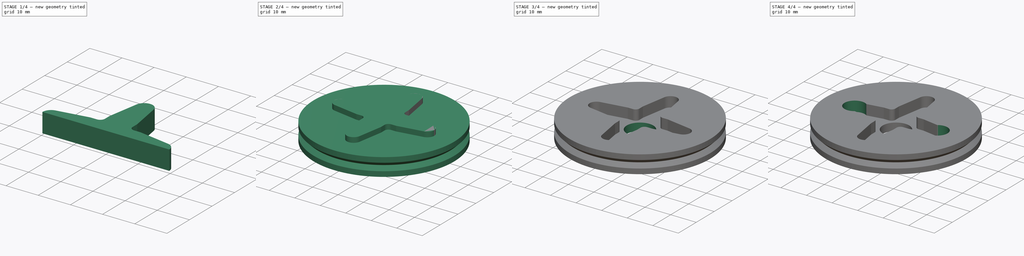
[diagram: build sequence overview — one tinted view per stage of 4, left to right]
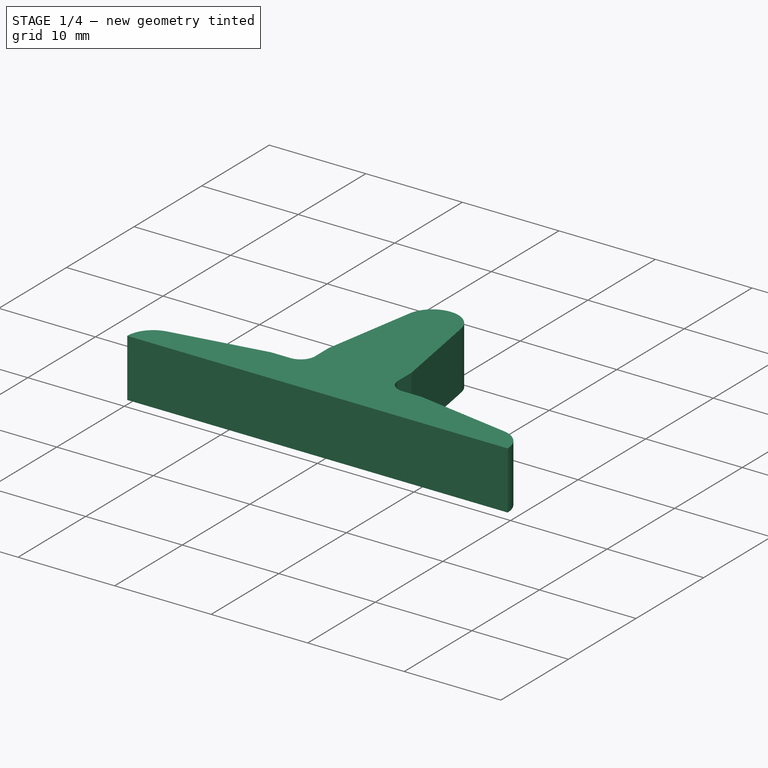
[diagram: stage 1 of 4 — iso view after this stage's code; geometry added in this stage tinted green]
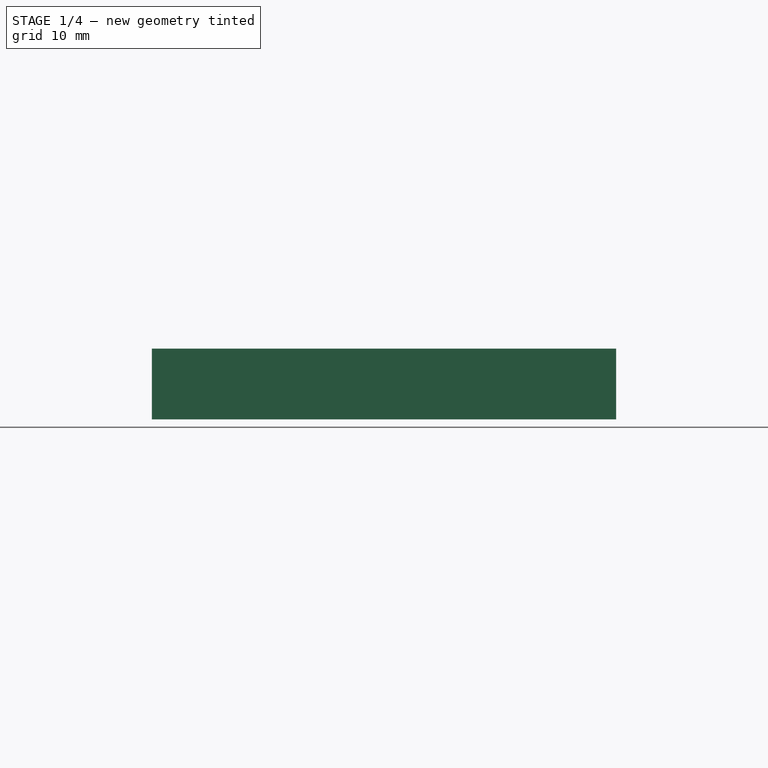
[diagram: stage 1 of 4 — front view after this stage's code; geometry added in this stage tinted green]
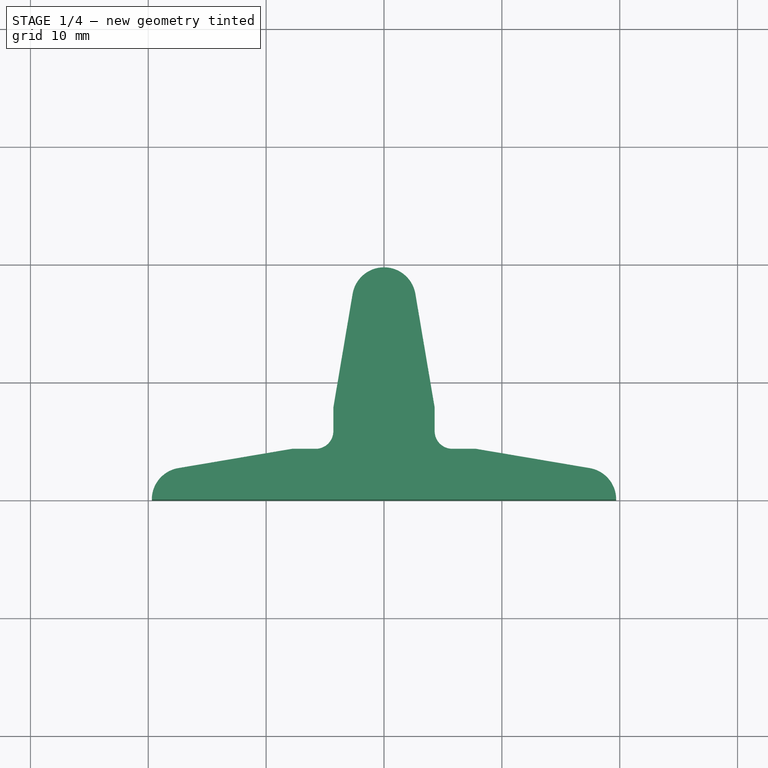
[diagram: stage 1 of 4 — top view after this stage's code; geometry added in this stage tinted green]
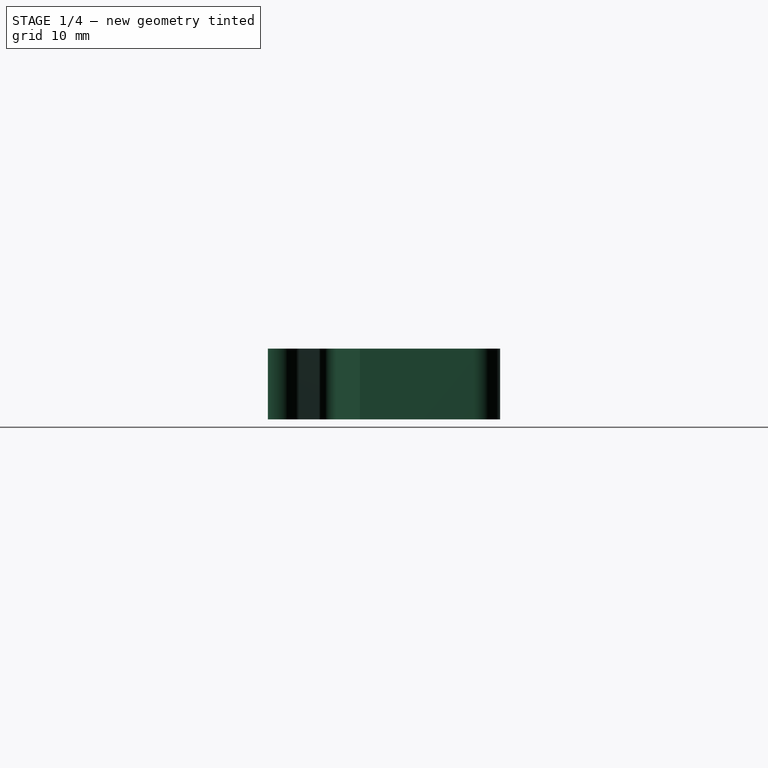
[diagram: stage 1 of 4 — right view after this stage's code; geometry added in this stage tinted green]
FCSTD DOCUMENT  (FreeCAD 0.19R24291 (Git))
Label: rueda
License: CC-BY 3.0
LicenseURL: http://creativecommons.org/licenses/by/3.0/
objects: Sketcher::SketchObject×5, PartDesign::Pocket×3, Part::Mirroring×2, Part::MultiFuse×2, PartDesign::PolarPattern×2, PartDesign::Revolution×1, PartDesign::Pad×1, Part::Cut×1, Part::Feature×1
note: 23 computed .brp shape members not serialized (recipe doc carries the construction recipe); baked Part::Feature solids carry a one-line shape summary decoded from their .brp

FEATURE [Sketcher::SketchObject] Sketch001  label="horn-top-left-quarter-sketch"
  FullyConstrained = false
  MapMode = 5
  sketch-geometry (12):
    g0: LineSegment StartX=0 StartY=0 StartZ=0 EndX=0 EndY=19.7 EndZ=0
    g1: LineSegment StartX=-4.73762 StartY=4.73762 StartZ=0 EndX=0 EndY=0 EndZ=0
    g2: ArcOfCircle CenterX=-5.79828 CenterY=5.79828 CenterZ=0 NormalX=0 NormalY=0 NormalZ=1 AngleXU=0 Radius=1.5 StartAngle=4.7124 EndAngle=6.28317
    g3: ArcOfCircle CenterX=-17 CenterY=0 CenterZ=0 NormalX=0 NormalY=0 NormalZ=1 AngleXU=0 Radius=2.7 StartAngle=1.73871 EndAngle=3.14159
    g4: ArcOfCircle CenterX=0 CenterY=17 CenterZ=0 NormalX=0 NormalY=0 NormalZ=1 AngleXU=0 Radius=2.7 StartAngle=1.5708 EndAngle=2.97368
    g5: LineSegment StartX=-4.29828 StartY=5.79826 StartZ=0 EndX=-4.29828 EndY=7.79826 EndZ=0
    g6: LineSegment StartX=-5.79826 StartY=4.29828 StartZ=0 EndX=-7.79826 EndY=4.29828 EndZ=0
    g7: LineSegment StartX=-4.29828 StartY=7.79826 StartZ=0 EndX=-2.66203 EndY=17.4512 EndZ=0
    g8: LineSegment StartX=-17.4512 StartY=2.66203 StartZ=0 EndX=-7.79826 EndY=4.29828 EndZ=0
    g9: LineSegment StartX=-7.79826 StartY=4.29828 StartZ=0 EndX=-7.79826 EndY=0 EndZ=0
    g10: LineSegment StartX=-4.29828 StartY=7.79826 StartZ=0 EndX=0 EndY=7.79826 EndZ=0
    g11: LineSegment StartX=-19.7 StartY=0 StartZ=0 EndX=0 EndY=0 EndZ=0
  constraints (39):
    c: PointOnObject(g0,g-2)
    c: Coincident(g1,g-1)
    c: Angle(g-1,g1) = 2.35619
    c: PointOnObject(g2,g1)
    c: PointOnObject(g1,g2)
    c: Coincident(g4,g0)
    c: PointOnObject(g4,g0)
    c: Equal(g3,g4)
    c: Radius(g3) = 2.7
    c: Coincident(g5,g2)
    c: Vertical(g5)
    c: Coincident(g6,g2)
    c: Horizontal(g6)
    c: Equal(g6,g5)
    c: Tangent(g7,g4)
    c: Coincident(g7,g4)
    c: Coincident(g7,g5)
    c: Coincident(g8,g3)
    c: Coincident(g8,g6)
    c: Tangent(g8,g3)
    c: Tangent(g2,g6)
    c: DistanceX(g6) = -2
    c: Radius(g2) = 1.5
    c: Vertical(g9)
    c: Coincident(g9,g6)
    c: Horizontal(g10)
    c: Coincident(g10,g5)
    c: PointOnObject(g10,g0)
    c: Equal(g9,g10)
    c: Distance(g1) = 6.7
    c: PointOnObject(g3,g-1)
    c: PointOnObject(g3,g-1)
    c: Horizontal(g11)
    c: Coincident(g11,g-1)
    c: Coincident(g11,g3)
    c: Equal(g11,g0)
    c: PointOnObject(g9,g11)
    c: Coincident(g0,g-1)
    c: DistanceX(g11) = 19.7
FEATURE [PartDesign::Pad] Pad  label="horn-top-left-quarter"
  AllowMultiFace = false
  Direction = (1,1,1)
  Length = 6
  Length2 = 100
  Profile = -> Sketch001
  Type = 0
FEATURE [Part::Mirroring] Part__Mirroring  label="horn-top-left-quarter (Mirror #1)"
  Base = (0,0,0)
  Normal = (1,0,0)
  Source = -> Pad
FEATURE [Part::MultiFuse] Fusion
  Shapes = -> [Part__Mirroring,Pad]
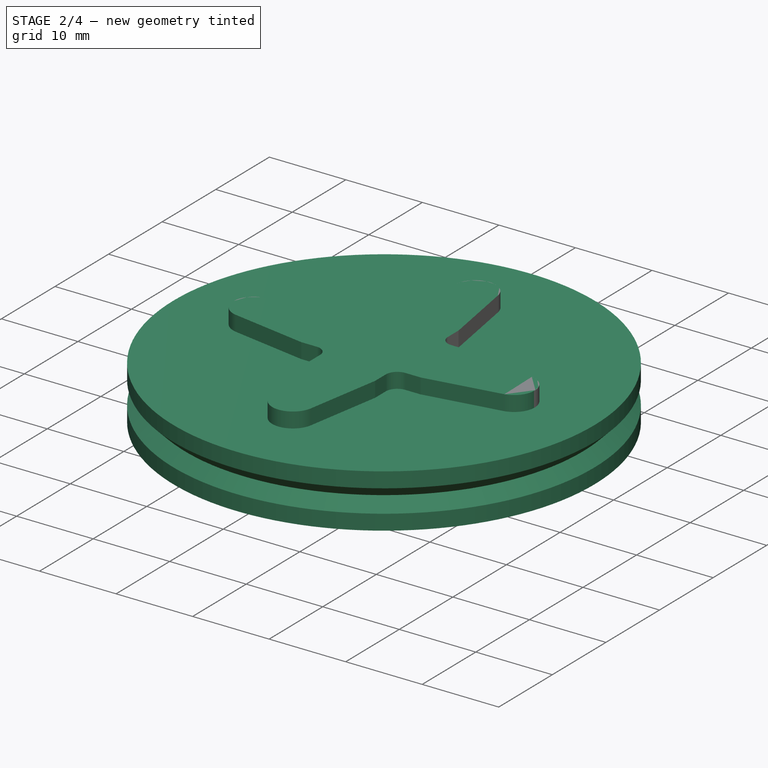
[diagram: stage 2 of 4 — iso view after this stage's code; geometry added in this stage tinted green]
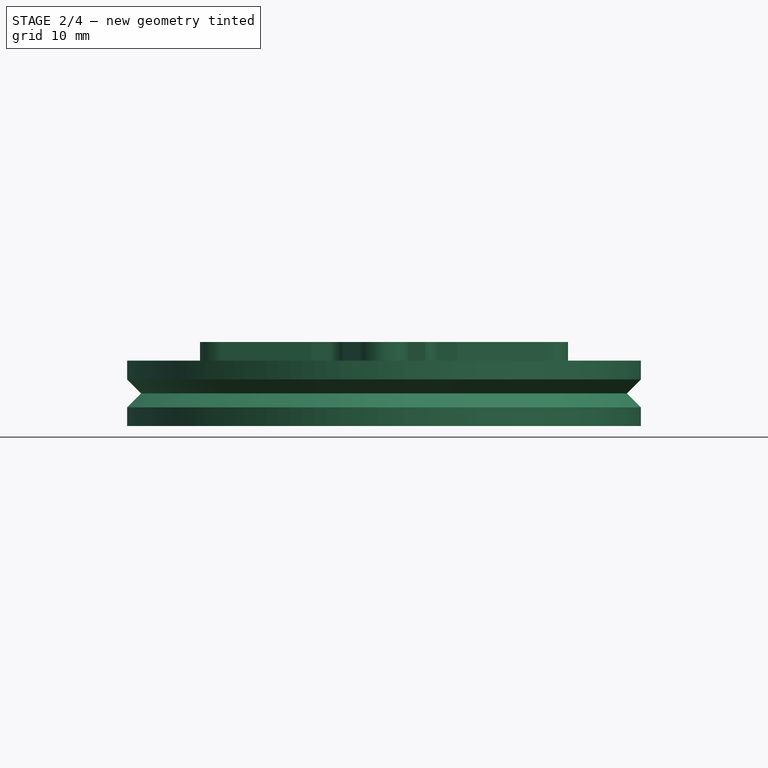
[diagram: stage 2 of 4 — front view after this stage's code; geometry added in this stage tinted green]
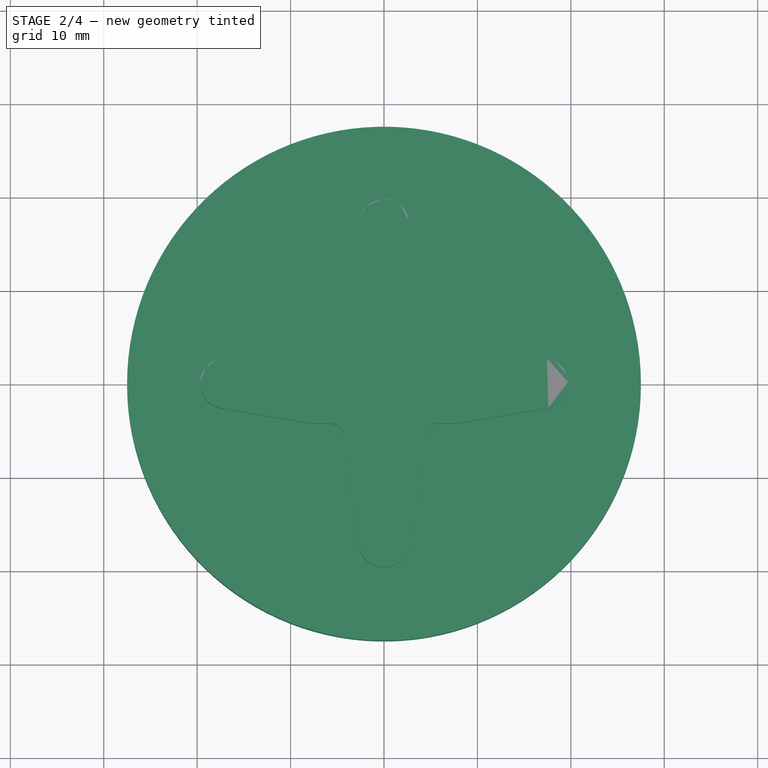
[diagram: stage 2 of 4 — top view after this stage's code; geometry added in this stage tinted green]
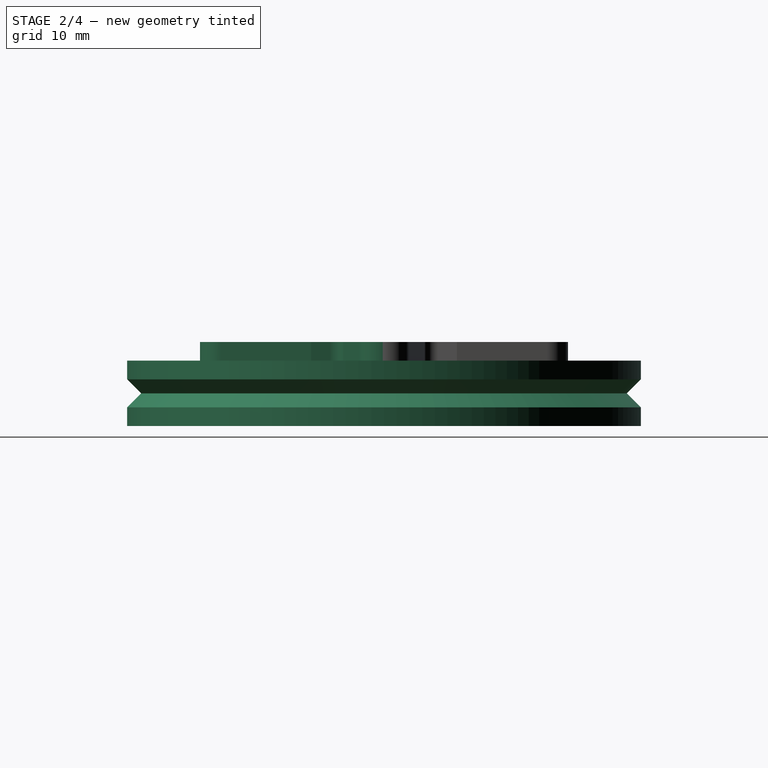
[diagram: stage 2 of 4 — right view after this stage's code; geometry added in this stage tinted green]
FEATURE [Sketcher::SketchObject] Sketch  label="wheel-generic-sketch"
  FullyConstrained = false
  MapMode = 5
  Placement = pos=(0,0,0) rot=(1,0,0;1.5708rad)
  sketch-geometry (7):
    g0: LineSegment StartX=0 StartY=-3.5 StartZ=0 EndX=0 EndY=3.5 EndZ=0
    g1: LineSegment StartX=0 StartY=3.5 StartZ=0 EndX=27.5 EndY=3.5 EndZ=0
    g2: LineSegment StartX=27.5 StartY=3.5 StartZ=0 EndX=27.5 EndY=1.5 EndZ=0
    g3: LineSegment StartX=27.5 StartY=1.5 StartZ=0 EndX=26 EndY=0 EndZ=0
    g4: LineSegment StartX=26 StartY=0 StartZ=0 EndX=27.5 EndY=-1.5 EndZ=0
    g5: LineSegment StartX=27.5 StartY=-1.5 StartZ=0 EndX=27.5 EndY=-3.5 EndZ=0
    g6: LineSegment StartX=27.5 StartY=-3.5 StartZ=0 EndX=0 EndY=-3.5 EndZ=0
  constraints (20):
    c: Vertical(g0)
    c: Coincident(g0,g1)
    c: Horizontal(g1)
    c: Coincident(g1,g2)
    c: Vertical(g2)
    c: Coincident(g2,g3)
    c: Coincident(g3,g4)
    c: Coincident(g4,g5)
    c: Coincident(g5,g6)
    c: Coincident(g6,g0)
    c: Horizontal(g6)
    c: Vertical(g5)
    c: PointOnObject(g0,g-2)
    c: Symmetric(g0,g0,g-1)
    c: PointOnObject(g3,g-1)
    c: Symmetric(g4,g2,g-1)
    c: Angle(g3,g-1) = 2.35619
    c: DistanceY(g4,g2) = 3
    c: DistanceX(g1) = 27.5
    c: DistanceY(g0) = 7
FEATURE [PartDesign::Revolution] Revolution  label="wheel-generic"
  AllowMultiFace = false
  Angle = 360
  Axis = (0,0,1)
  Base = (0,0,0)
  Placement = pos=(0,0,0) rot=(1,0,0;1.5708rad)
  Profile = -> Sketch
  ReferenceAxis = -> Sketch [V_Axis]
  Reversed = true
FEATURE [Part::Mirroring] Part__Mirroring001  label="Fusion (Mirror #2)"
  Base = (0,0,0)
  Normal = (0,1,0)
  Source = -> Fusion
FEATURE [Part::MultiFuse] Fusion001  label="4-arms-horn-body"
  Placement = pos=(0,0,-0.5) rot=(0,0,1;0rad)
  Shapes = -> [Part__Mirroring001,Fusion]
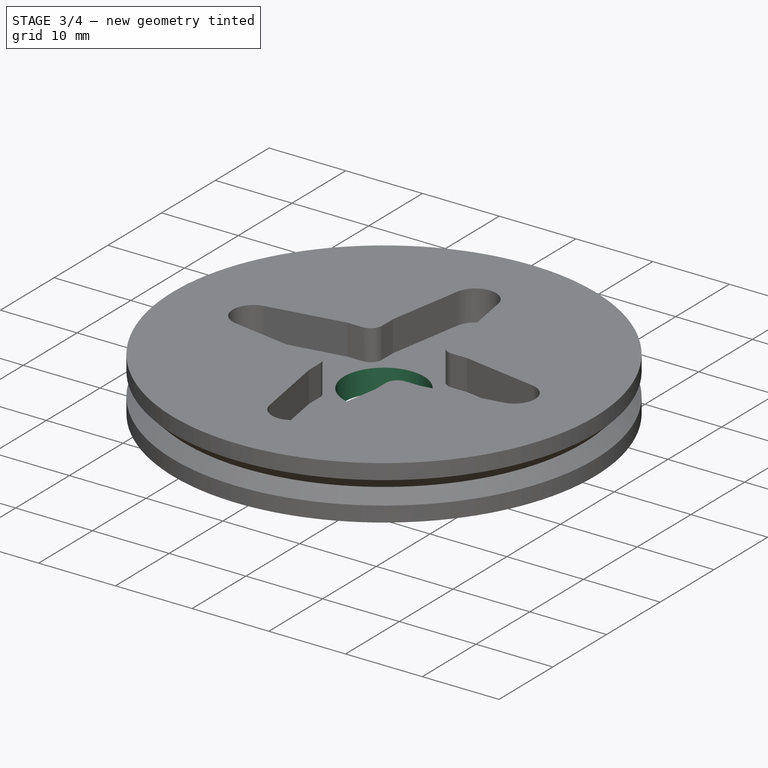
[diagram: stage 3 of 4 — iso view after this stage's code; geometry added in this stage tinted green]
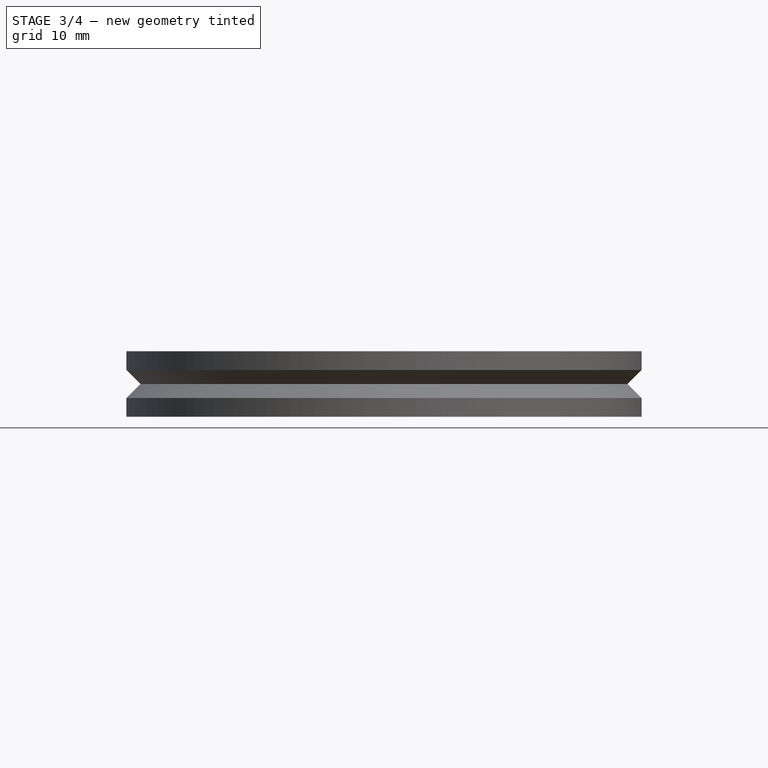
[diagram: stage 3 of 4 — front view after this stage's code; geometry added in this stage tinted green]
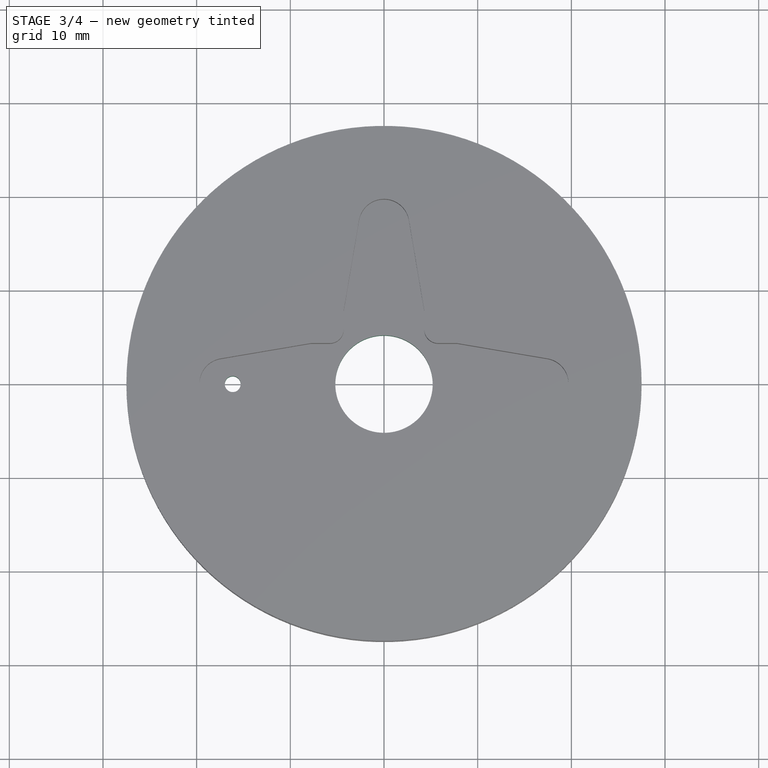
[diagram: stage 3 of 4 — top view after this stage's code; geometry added in this stage tinted green]
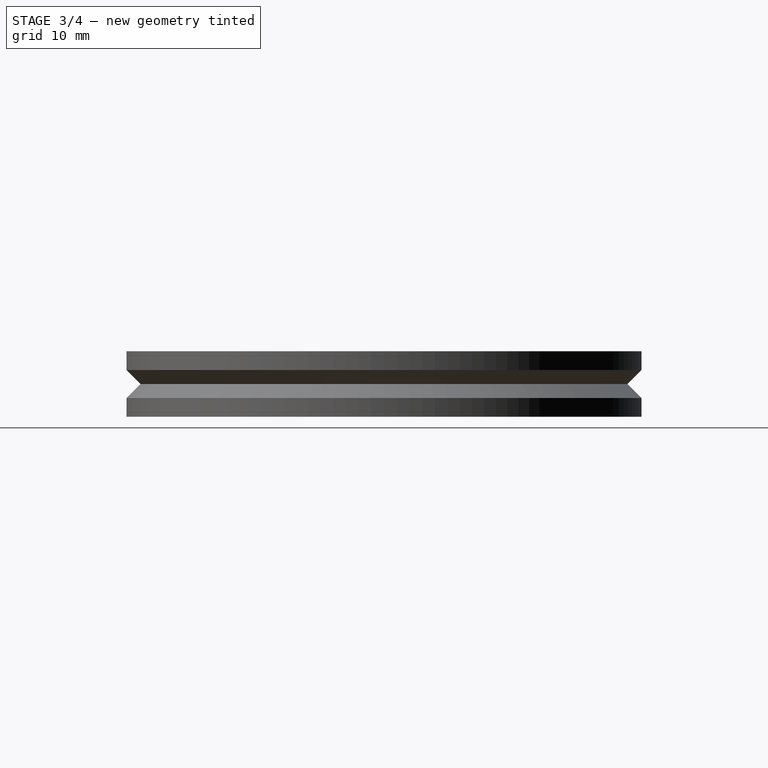
[diagram: stage 3 of 4 — right view after this stage's code; geometry added in this stage tinted green]
FEATURE [Part::Cut] Cut  label="wheel-horn"
  Base = -> Revolution
  Tool = -> Fusion001
FEATURE [Sketcher::SketchObject] Sketch002  label="shaft-drill-sketch"
  FullyConstrained = false
  MapMode = 5
  Placement = pos=(0,0,-0.5) rot=(0,0,1;0rad)
  Support = -> [Cut]
  sketch-geometry (1):
    g0: Circle CenterX=0 CenterY=0 CenterZ=0 NormalX=0 NormalY=0 NormalZ=1 AngleXU=0 Radius=5.2
  constraints (2):
    c: Coincident(g0,g-1)
    c: Radius(g0) = 5.2
FEATURE [PartDesign::Pocket] Pocket  label="shaft-drill"
  AllowMultiFace = false
  Length = 5
  Length2 = 100
  Profile = -> Sketch002
  Type = 1
FEATURE [Sketcher::SketchObject] Sketch003  label="drill-horn-master-sketch"
  FullyConstrained = false
  MapMode = 5
  Placement = pos=(0,0,-0.5) rot=(0,0,1;0rad)
  Support = -> [Pocket]
  sketch-geometry (1):
    g0: Circle CenterX=-16.15 CenterY=0 CenterZ=0 NormalX=0 NormalY=0 NormalZ=1 AngleXU=0 Radius=0.85
  constraints (3):
    c: PointOnObject(g0,g-1)
    c: Radius(g0) = 0.85
    c: DistanceX(g-1,g0) = -16.15
FEATURE [PartDesign::Pocket] Pocket001  label="drill-horn-master"
  AllowMultiFace = false
  Length = 5
  Length2 = 100
  Profile = -> Sketch003
  Type = 1
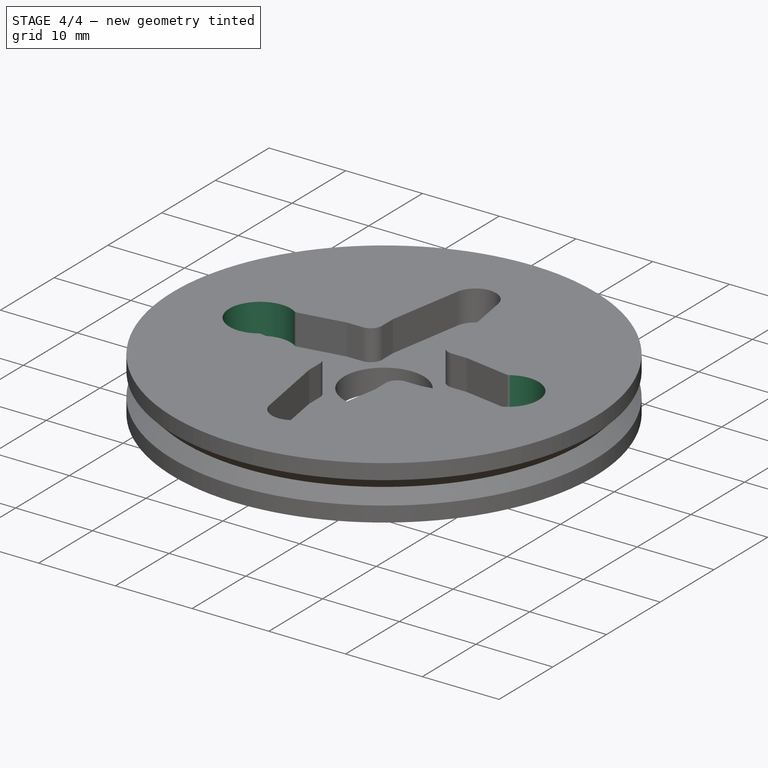
[diagram: stage 4 of 4 — iso view after this stage's code; geometry added in this stage tinted green]
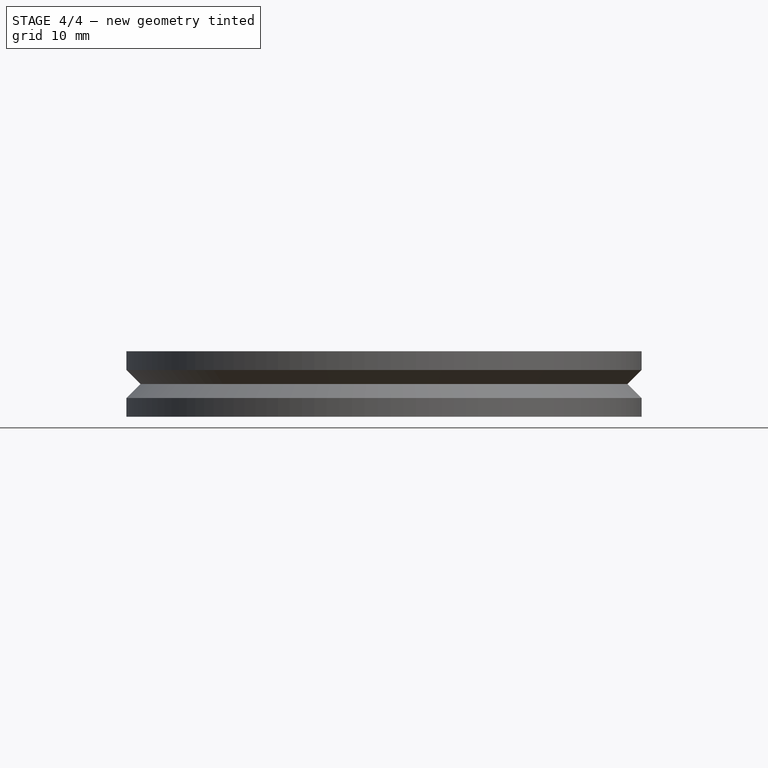
[diagram: stage 4 of 4 — front view after this stage's code; geometry added in this stage tinted green]
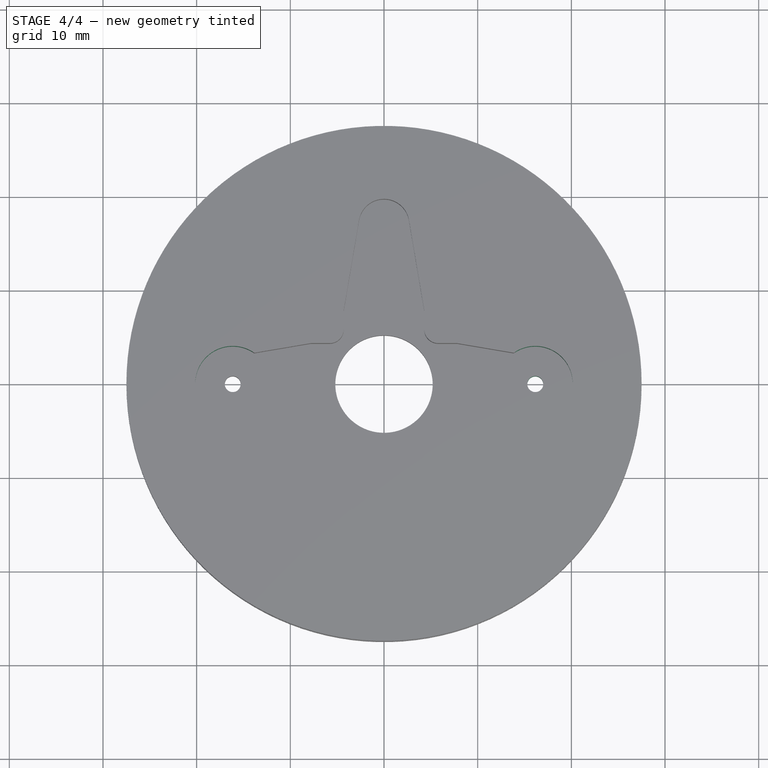
[diagram: stage 4 of 4 — top view after this stage's code; geometry added in this stage tinted green]
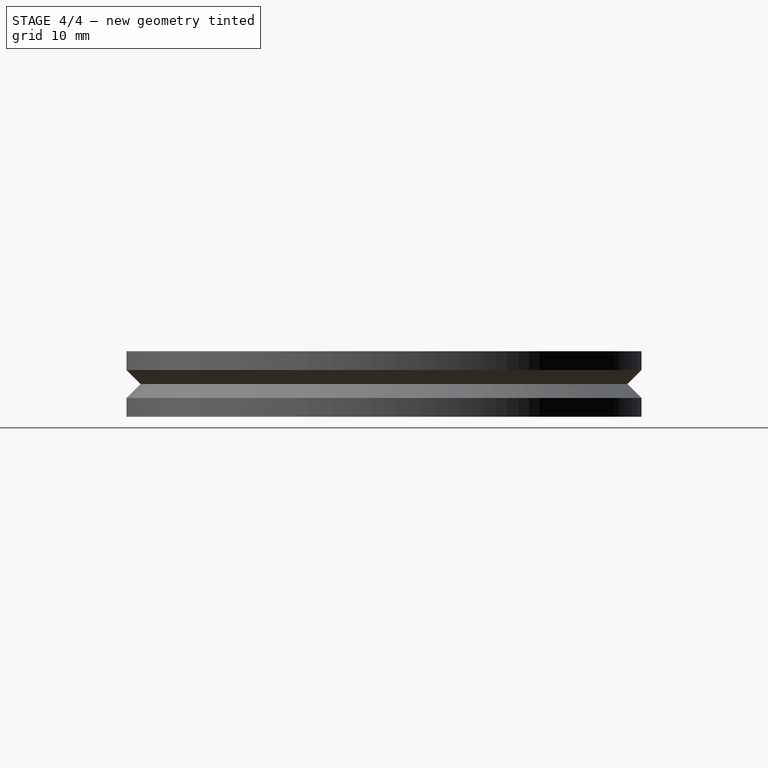
[diagram: stage 4 of 4 — right view after this stage's code; geometry added in this stage tinted green]
FEATURE [PartDesign::PolarPattern] PolarPattern  label="horn-drills"
  Angle = 360
  Axis = -> Sketch003 [N_Axis]
  Occurrences = 2
  Originals = -> [Pocket001]
FEATURE [Sketcher::SketchObject] Sketch004  label="horn-screw-room-master-sketch"
  FullyConstrained = false
  MapMode = 5
  Placement = pos=(0,8e-16,3.5) rot=(0,0,1;0rad)
  Support = -> [PolarPattern]
  sketch-geometry (1):
    g0: Circle CenterX=-16.15 CenterY=0 CenterZ=0 NormalX=0 NormalY=0 NormalZ=1 AngleXU=0 Radius=4
  constraints (3):
    c: PointOnObject(g0,g-1)
    c: DistanceX(g-1,g0) = -16.15
    c: Radius(g0) = 4
FEATURE [PartDesign::Pocket] Pocket002  label="horn-screw-room-master"
  AllowMultiFace = false
  Length = 4
  Length2 = 100
  Profile = -> Sketch004
  Type = 0
FEATURE [PartDesign::PolarPattern] PolarPattern001  label="horn-screws-room"
  Angle = 360
  Axis = -> Sketch004 [N_Axis]
  Occurrences = 2
  Originals = -> [Pocket002]
FEATURE [Part::Feature] PolarPattern001001  label="Renacuajo-wheel-4-arms-horn-final"
  shape: bbox 55 x 55 x 7 mm, 34 faces (baked)
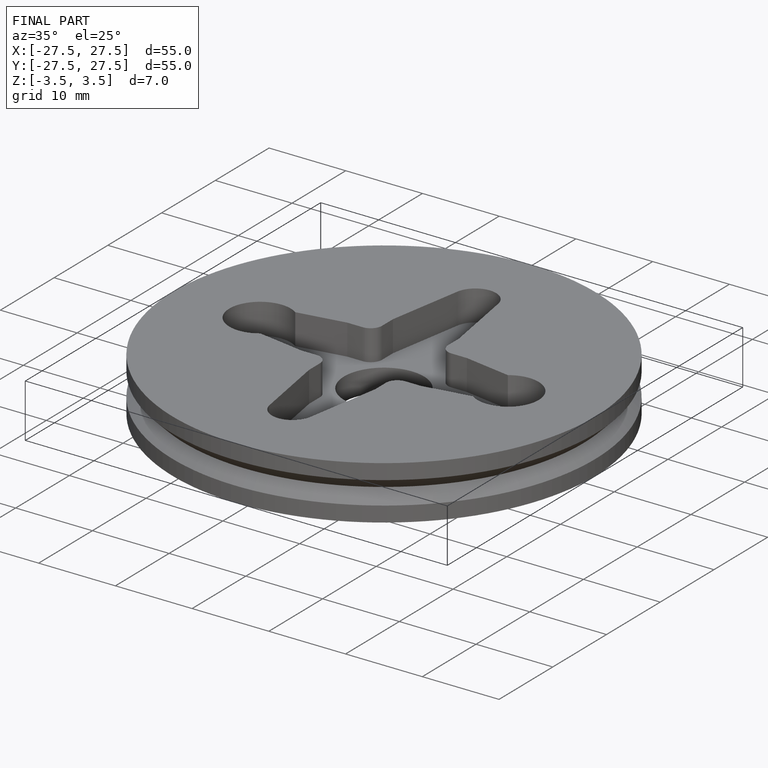
[diagram: finished part — iso view with bounding-box wireframe]
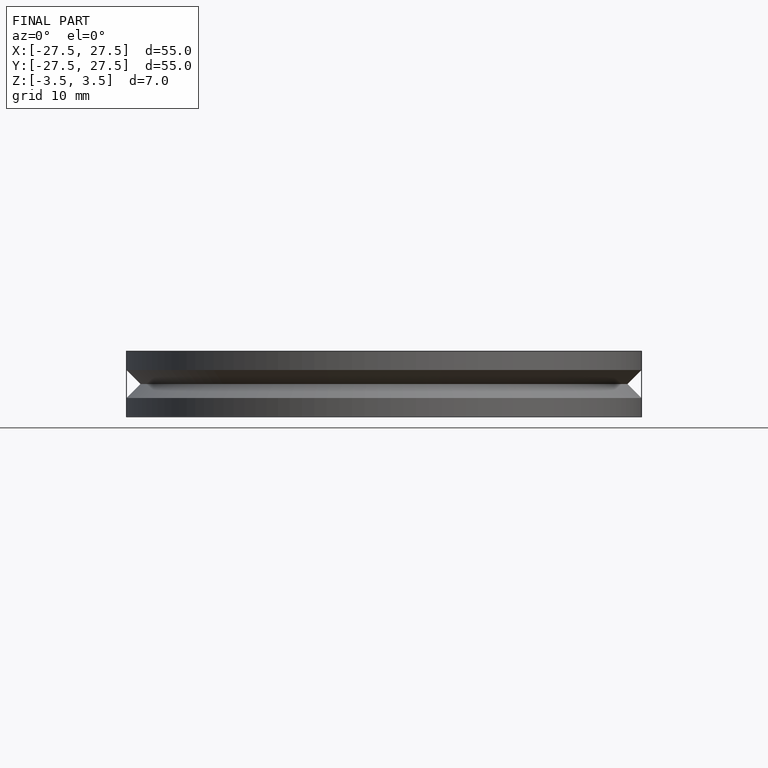
[diagram: finished part — front view with bounding-box wireframe]
